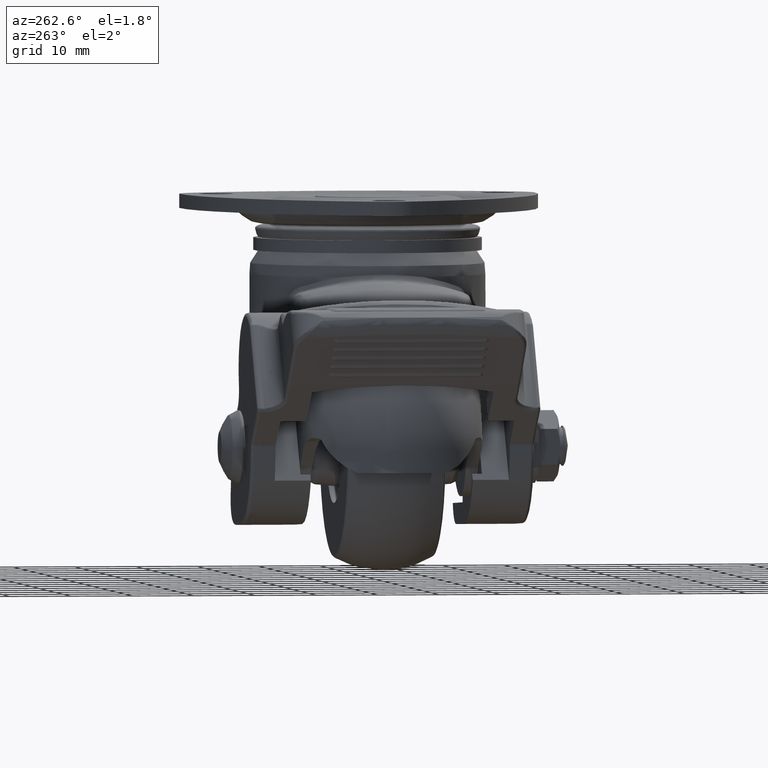
[diagram: clean part render]
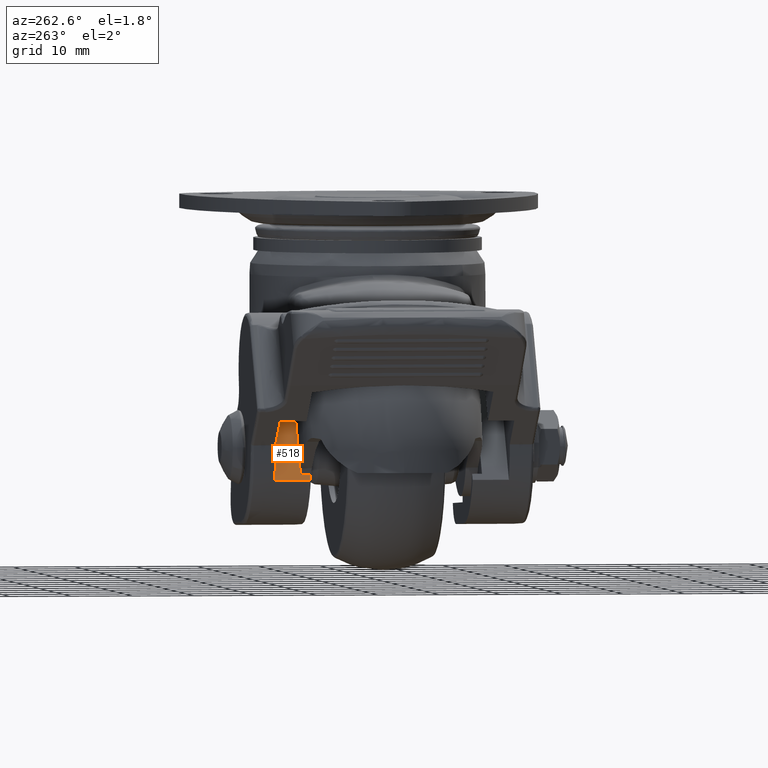
[diagram: same view with one face highlighted and labeled with its STEP entity id]
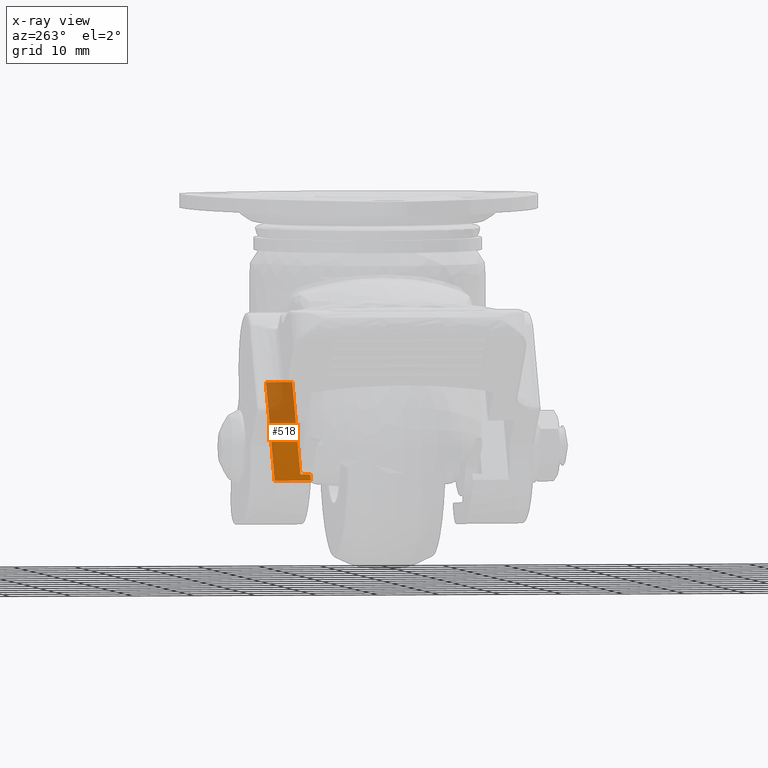
[diagram: x-ray of the same camera — body ghosted, the highlighted face saturated]
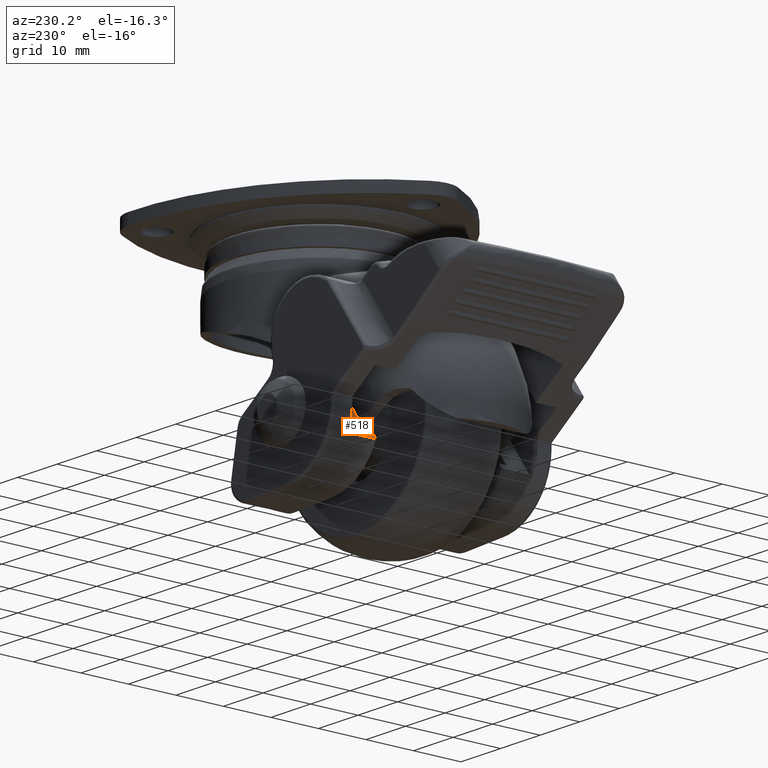
[diagram: same view with one face highlighted and labeled with its STEP entity id]
A machine part, auxiliary view. The second image highlights one B-rep face of the part: STEP entity #518.
The next image is the same camera in x-ray: the body ghosted, the highlighted face saturated — about 39% of this face is hidden behind the body in this view.
A second angle (auxiliary view) of the same face is appended — the face is thin or edge-on in the first view.
In plain terms, the highlighted face is a freeform B-spline surface patch.
Its self-contained STEP definition (entity closure, byte-faithful):
#421=CARTESIAN_POINT('',(-30.406331867003299,19.100000000000001,-45.113273953849898));
#422=VERTEX_POINT('',#421);
#423=CARTESIAN_POINT('',(-19.352229102816700,19.100000000000001,-29.522869478546550));
#424=VERTEX_POINT('',#423);
#425=CARTESIAN_POINT('',(-30.406331867003299,19.100000000000001,-45.113273953849898));
#426=CARTESIAN_POINT('',(-19.352229102816700,19.100000000000001,-29.522869478546550));
#427=QUASI_UNIFORM_CURVE('',1,(#425,#426),.UNSPECIFIED.,.F.,.U.);
#428=EDGE_CURVE('',#422,#424,#427,.T.);
#477=CARTESIAN_POINT('',(-30.958484174881448,12.905294768816701,-45.892014480822532));
#478=CARTESIAN_POINT('',(-18.800076399613069,12.905294768816701,-28.744128394017618));
#479=CARTESIAN_POINT('',(-30.958484174881448,19.394705600434278,-45.892014480822532));
#480=CARTESIAN_POINT('',(-18.800076399613069,19.394705600434278,-28.744128394017618));
#481=B_SPLINE_SURFACE_WITH_KNOTS('',1,1,((#477,#479),(#478,#480)),.UNSPECIFIED.,.F.,.F.,.U.,(2,2),(2,2),(0.0,21.020867652781220),(0.0,6.489410831617583),.UNSPECIFIED.);
#482=CARTESIAN_POINT('',(-19.352229102816700,14.800000000000001,-29.522869478546550));
#483=VERTEX_POINT('',#482);
#484=CARTESIAN_POINT('',(-19.352229102816700,14.800000000000001,-29.522869478546550));
#485=CARTESIAN_POINT('',(-19.352229102816700,19.100000000000001,-29.522869478546550));
#486=QUASI_UNIFORM_CURVE('',1,(#484,#485),.UNSPECIFIED.,.F.,.U.);
#487=EDGE_CURVE('',#483,#424,#486,.T.);
#488=ORIENTED_EDGE('',*,*,#487,.T.);
#489=ORIENTED_EDGE('',*,*,#428,.F.);
#490=CARTESIAN_POINT('',(-30.406331867003200,13.200000000000200,-45.113273953850012));
#491=VERTEX_POINT('',#490);
#492=CARTESIAN_POINT('',(-30.406331867003200,13.200000000000200,-45.113273953850012));
#493=CARTESIAN_POINT('',(-30.406331867003299,19.100000000000001,-45.113273953849898));
#494=QUASI_UNIFORM_CURVE('',1,(#492,#493),.UNSPECIFIED.,.F.,.U.);
#495=EDGE_CURVE('',#491,#422,#494,.T.);
#496=ORIENTED_EDGE('',*,*,#495,.F.);
#497=CARTESIAN_POINT('',(-29.724469516630752,13.200000000000200,-44.151593927387047));
#498=VERTEX_POINT('',#497);
#499=CARTESIAN_POINT('',(-29.724469516630752,13.200000000000200,-44.151593927387047));
#500=CARTESIAN_POINT('',(-30.406331867003200,13.200000000000200,-45.113273953850012));
#501=QUASI_UNIFORM_CURVE('',1,(#499,#500),.UNSPECIFIED.,.F.,.U.);
#502=EDGE_CURVE('',#498,#491,#501,.T.);
#503=ORIENTED_EDGE('',*,*,#502,.F.);
#504=CARTESIAN_POINT('',(-29.724469516630801,14.800000000000001,-44.151593927386848));
#505=VERTEX_POINT('',#504);
#506=CARTESIAN_POINT('',(-29.724469516630801,14.800000000000001,-44.151593927386848));
#507=CARTESIAN_POINT('',(-29.724469516630752,13.200000000000200,-44.151593927387047));
#508=QUASI_UNIFORM_CURVE('',1,(#506,#507),.UNSPECIFIED.,.F.,.U.);
#509=EDGE_CURVE('',#505,#498,#508,.T.);
#510=ORIENTED_EDGE('',*,*,#509,.F.);
#511=CARTESIAN_POINT('',(-19.352229102816700,14.800000000000001,-29.522869478546550));
#512=CARTESIAN_POINT('',(-29.724469516630801,14.800000000000001,-44.151593927386848));
#513=QUASI_UNIFORM_CURVE('',1,(#511,#512),.UNSPECIFIED.,.F.,.U.);
#514=EDGE_CURVE('',#483,#505,#513,.T.);
#515=ORIENTED_EDGE('',*,*,#514,.F.);
#516=EDGE_LOOP('',(#488,#489,#496,#503,#510,#515));
#517=FACE_OUTER_BOUND('',#516,.T.);
#518=ADVANCED_FACE('',(#517),#481,.T.);